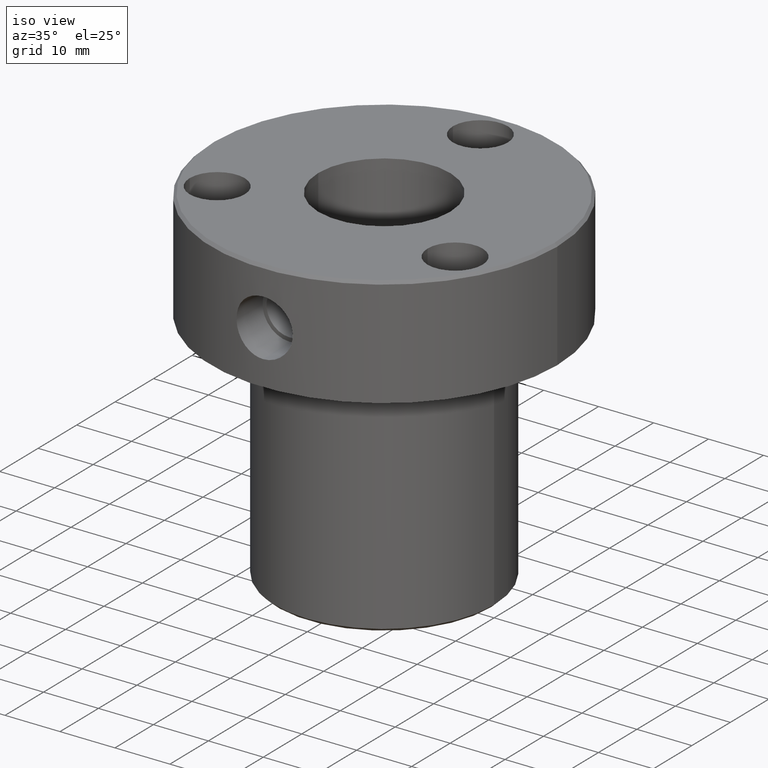
[diagram: clean part render]
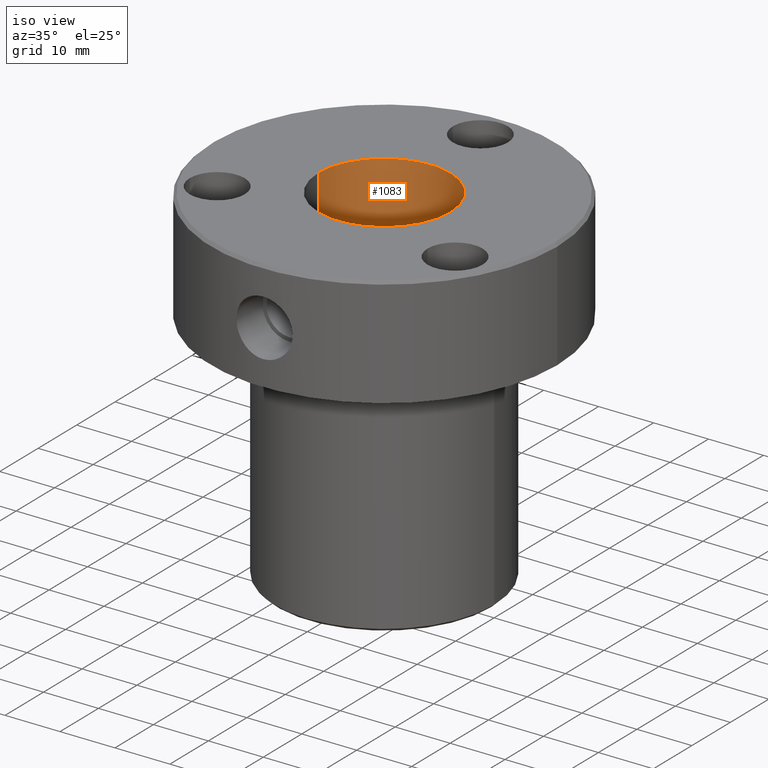
[diagram: same view with one face highlighted and labeled with its STEP entity id]
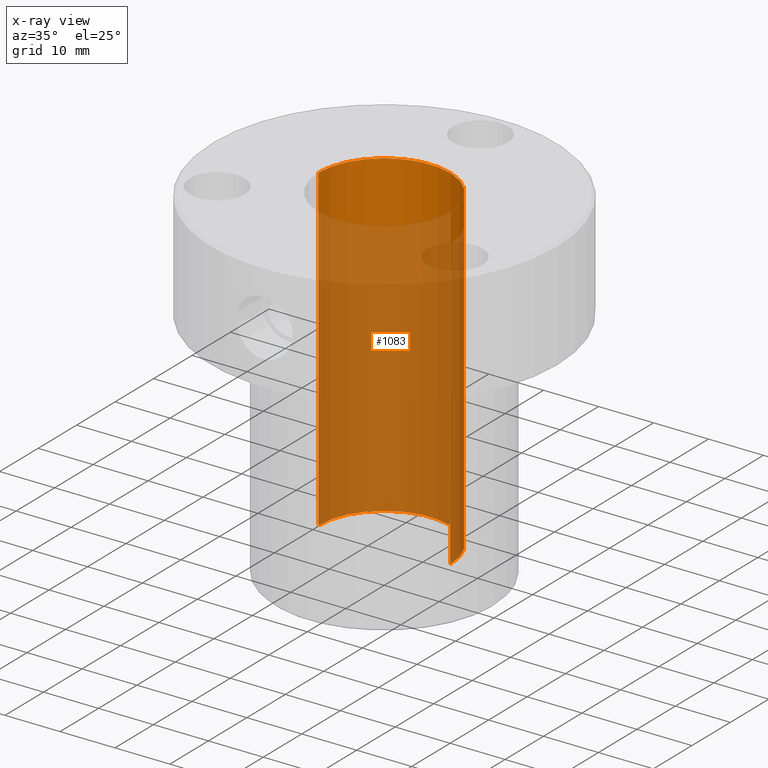
[diagram: x-ray of the same camera — body ghosted, the highlighted face saturated]
A machine part, iso view. The second image highlights one B-rep face of the part: STEP entity #1083.
The next image is the same camera in x-ray: the body ghosted, the highlighted face saturated — about 83% of this face is hidden behind the body in this view.
In plain terms, the highlighted cylindrical surface (partial cylindrical patch) has radius 12 mm, axis along (-0, -0, -1).
Its self-contained STEP definition (entity closure, byte-faithful):
#9 = EDGE_CURVE ( 'NONE', #1002, #301, #449, .T. ) ;
#11 = DIRECTION ( 'NONE',  ( -1.000000000000000000, 0.000000000000000000, 0.000000000000000000 ) ) ;
#54 = VERTEX_POINT ( 'NONE', #821 ) ;
#71 = VECTOR ( 'NONE', #666, 1000.000000000000000 ) ;
#83 = CARTESIAN_POINT ( 'NONE',  ( 0.000000000000000000, 0.000000000000000000, -58.00000000000000000 ) ) ;
#209 = EDGE_CURVE ( 'NONE', #1248, #54, #1145, .T. ) ;
#269 = CARTESIAN_POINT ( 'NONE',  ( 0.000000000000000000, 0.000000000000000000, 0.000000000000000000 ) ) ;
#278 = CARTESIAN_POINT ( 'NONE',  ( -12.00000000000000178, 0.000000000000000000, 0.000000000000000000 ) ) ;
#286 = DIRECTION ( 'NONE',  ( -0.000000000000000000, -0.000000000000000000, -1.000000000000000000 ) ) ;
#294 = CYLINDRICAL_SURFACE ( 'NONE', #441, 12.00000000000000178 ) ;
#301 = VERTEX_POINT ( 'NONE', #693 ) ;
#357 = DIRECTION ( 'NONE',  ( 0.000000000000000000, 0.000000000000000000, -1.000000000000000000 ) ) ;
#441 = AXIS2_PLACEMENT_3D ( 'NONE', #587, #286, #11 ) ;
#449 = LINE ( 'NONE', #941, #1168 ) ;
#456 = EDGE_LOOP ( 'NONE', ( #998, #509, #1041, #866 ) ) ;
#459 = DIRECTION ( 'NONE',  ( -0.000000000000000000, -0.000000000000000000, -1.000000000000000000 ) ) ;
#490 = DIRECTION ( 'NONE',  ( 0.000000000000000000, 0.000000000000000000, -1.000000000000000000 ) ) ;
#500 = CARTESIAN_POINT ( 'NONE',  ( 12.00000000000000178, 1.469576158976824144E-15, 0.000000000000000000 ) ) ;
#509 = ORIENTED_EDGE ( 'NONE', *, *, #1156, .F. ) ;
#587 = CARTESIAN_POINT ( 'NONE',  ( 0.000000000000000000, 0.000000000000000000, 0.000000000000000000 ) ) ;
#652 = AXIS2_PLACEMENT_3D ( 'NONE', #269, #490, #1046 ) ;
#666 = DIRECTION ( 'NONE',  ( -0.000000000000000000, -0.000000000000000000, -1.000000000000000000 ) ) ;
#693 = CARTESIAN_POINT ( 'NONE',  ( 12.00000000000000178, 1.469576158976824144E-15, -58.00000000000000000 ) ) ;
#715 = EDGE_CURVE ( 'NONE', #54, #301, #925, .T. ) ;
#746 = FACE_OUTER_BOUND ( 'NONE', #456, .T. ) ;
#821 = CARTESIAN_POINT ( 'NONE',  ( -12.00000000000000178, 0.000000000000000000, -58.00000000000000000 ) ) ;
#866 = ORIENTED_EDGE ( 'NONE', *, *, #715, .T. ) ;
#925 = CIRCLE ( 'NONE', #1010, 12.00000000000000178 ) ;
#941 = CARTESIAN_POINT ( 'NONE',  ( 12.00000000000000178, 1.469576158976824144E-15, 0.000000000000000000 ) ) ;
#952 = CIRCLE ( 'NONE', #652, 12.00000000000000178 ) ;
#998 = ORIENTED_EDGE ( 'NONE', *, *, #9, .F. ) ;
#1002 = VERTEX_POINT ( 'NONE', #500 ) ;
#1010 = AXIS2_PLACEMENT_3D ( 'NONE', #83, #357, #1136 ) ;
#1041 = ORIENTED_EDGE ( 'NONE', *, *, #209, .T. ) ;
#1046 = DIRECTION ( 'NONE',  ( -1.000000000000000000, 0.000000000000000000, 0.000000000000000000 ) ) ;
#1083 = ADVANCED_FACE ( 'NONE', ( #746 ), #294, .F. ) ;
#1085 = CARTESIAN_POINT ( 'NONE',  ( -12.00000000000000178, 0.000000000000000000, 0.000000000000000000 ) ) ;
#1136 = DIRECTION ( 'NONE',  ( -1.000000000000000000, 0.000000000000000000, 0.000000000000000000 ) ) ;
#1145 = LINE ( 'NONE', #278, #71 ) ;
#1156 = EDGE_CURVE ( 'NONE', #1248, #1002, #952, .T. ) ;
#1168 = VECTOR ( 'NONE', #459, 1000.000000000000000 ) ;
#1248 = VERTEX_POINT ( 'NONE', #1085 ) ;